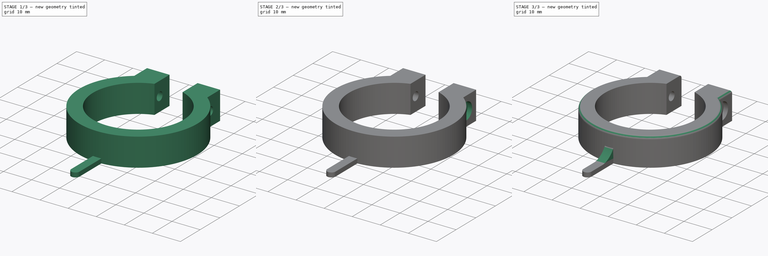
[diagram: build sequence overview — one tinted view per stage of 3, left to right]
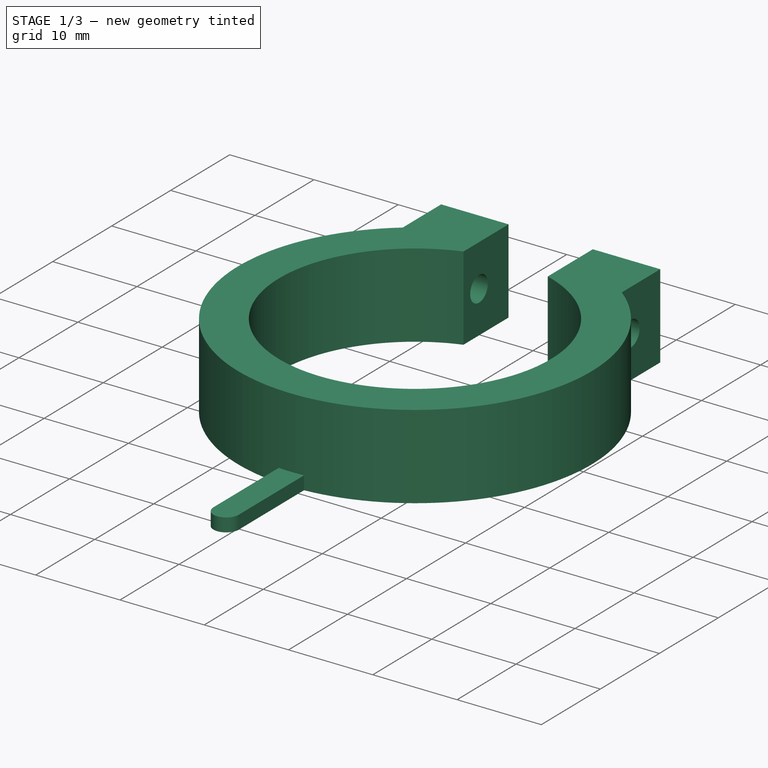
[diagram: stage 1 of 3 — iso view after this stage's code; geometry added in this stage tinted green]
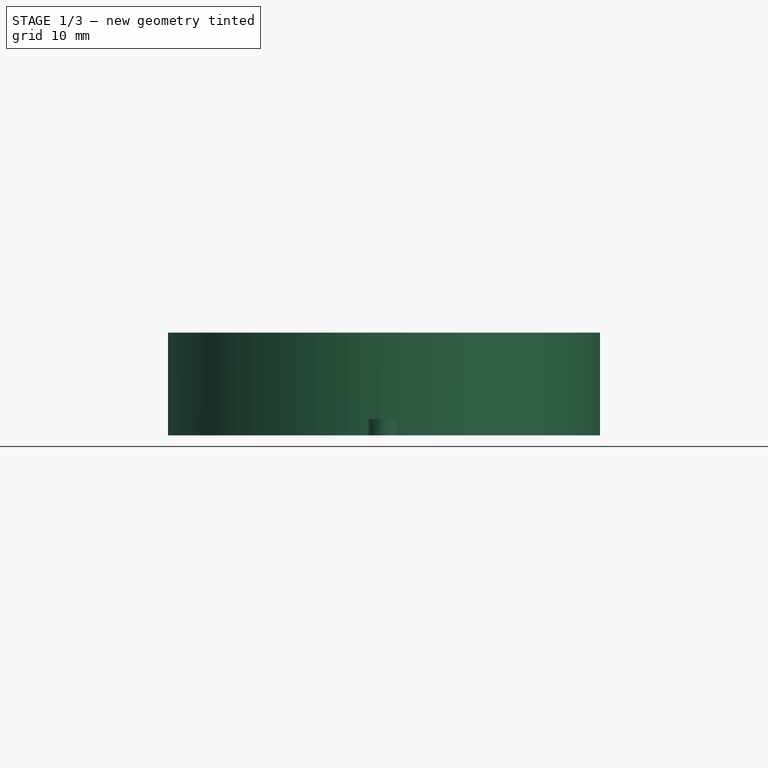
[diagram: stage 1 of 3 — front view after this stage's code; geometry added in this stage tinted green]
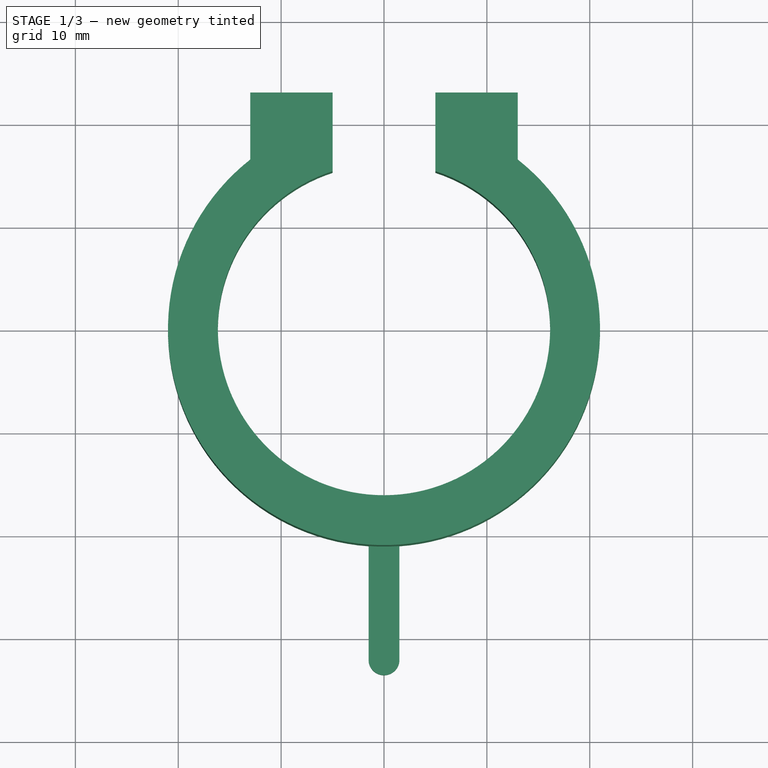
[diagram: stage 1 of 3 — top view after this stage's code; geometry added in this stage tinted green]
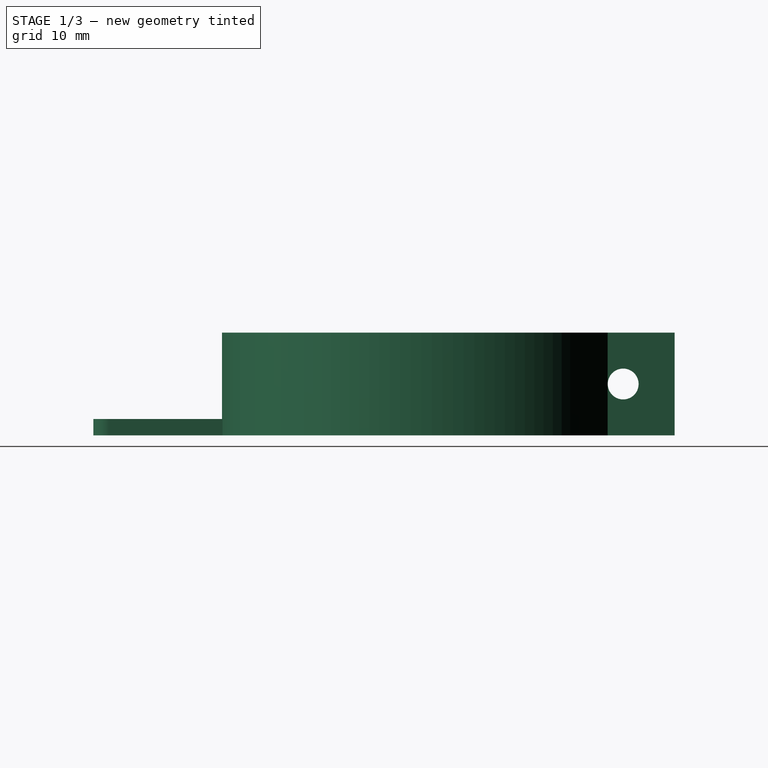
[diagram: stage 1 of 3 — right view after this stage's code; geometry added in this stage tinted green]
FCSTD DOCUMENT  (FreeCAD 0.16R4928 (Git))
Label: homing_ring
License: All rights reserved
LicenseURL: http://en.wikipedia.org/wiki/All_rights_reserved
objects: Sketcher::SketchObject×6, PartDesign::Pocket×4, PartDesign::Pad×2, PartDesign::Fillet×1, Part::MultiFuse×1
note: 20 computed .brp shape members not serialized (recipe doc carries the construction recipe); baked Part::Feature solids carry a one-line shape summary decoded from their .brp

FEATURE [Sketcher::SketchObject] Sketch
  sketch-geometry (12):
    g0: ArcOfCircle CenterX=0 CenterY=0 CenterZ=0 NormalX=0 NormalY=0 NormalZ=1 Radius=16.15 StartAngle=1.88557 EndAngle=7.53921
    g1: ArcOfCircle CenterX=0 CenterY=0 CenterZ=0 NormalX=0 NormalY=0 NormalZ=1 Radius=21 StartAngle=4.78388 EndAngle=7.18645
    g2: LineSegment StartX=-1.5 StartY=-20.9464 StartZ=0 EndX=-1.5 EndY=-32 EndZ=0
    g3: LineSegment StartX=1.5 StartY=-20.9464 StartZ=0 EndX=1.5 EndY=-32 EndZ=0
    g4: LineSegment StartX=-5 StartY=23 StartZ=0 EndX=-5 EndY=15.3565 EndZ=0
    g5: LineSegment StartX=5 StartY=23 StartZ=0 EndX=5 EndY=15.3565 EndZ=0
    g6: ArcOfCircle CenterX=0 CenterY=0 CenterZ=0 NormalX=0 NormalY=0 NormalZ=1 Radius=21 StartAngle=2.23833 EndAngle=4.6409
    g7: LineSegment StartX=-13 StartY=16.4924 StartZ=0 EndX=-13 EndY=23 EndZ=0
    g8: LineSegment StartX=13 StartY=16.4924 StartZ=0 EndX=13 EndY=23 EndZ=0
    g9: LineSegment StartX=5 StartY=23 StartZ=0 EndX=13 EndY=23 EndZ=0
    g10: LineSegment StartX=-13 StartY=23 StartZ=0 EndX=-5 EndY=23 EndZ=0
    g11: ArcOfCircle CenterX=0 CenterY=-32 CenterZ=0 NormalX=0 NormalY=0 NormalZ=1 Radius=1.5 StartAngle=3.1416 EndAngle=6.28318
  constraints (37):
    c: Coincident(g0,g-1)
    c: Radius(g0) = 16.15
    c: Coincident(g1,g-1)
    c: Radius(g1) = 21
    c: Vertical(g2)
    c: Vertical(g3)
    c: Coincident(g1,g3)
    c: Coincident(g6,g2)
    c: DistanceX(g-1,g1) = 1.5
    c: DistanceX(g-1,g6) = -1.5
    c: Equal(g3,g2)
    c: Vertical(g4)
    c: Vertical(g5)
    c: DistanceX(g-1,g5) = 5
    c: DistanceX(g-1,g4) = -5
    c: Equal(g1,g6)
    c: Coincident(g1,g6)
    c: Coincident(g0,g4)
    c: Coincident(g0,g5)
    c: DistanceY(g-1,g4) = 23
    c: Vertical(g7)
    c: Vertical(g8)
    c: Coincident(g1,g8)
    c: Coincident(g7,g6)
    c: Coincident(g9,g5)
    c: Coincident(g9,g8)
    c: Horizontal(g9)
    c: Coincident(g10,g7)
    c: Coincident(g10,g4)
    c: Horizontal(g10)
    c: Coincident(g11,g2)
    c: Coincident(g11,g3)
    c: Radius(g11) = 1.5
    c: DistanceX(g-1,g6) = -13
    c: DistanceX(g-1,g1) = 13
    c: DistanceY(g-1,g11) = -32
    c: Symmetric(g4,g5,g-2)
FEATURE [PartDesign::Pad] Pad  label="Initial Pad"
  Length = 10
  Length2 = 100
  Sketch = -> Sketch
  Type = 0
FEATURE [Sketcher::SketchObject] Sketch001
  ExternalGeometry = -> [Pad]
  Placement = pos=(0,0,10) rot=(0,0,1;0rad)
  Support = -> Pad [Face14]
  sketch-geometry (4):
    g0: ArcOfCircle CenterX=0 CenterY=0 CenterZ=0 NormalX=0 NormalY=0 NormalZ=1 Radius=21 StartAngle=4.6409 EndAngle=4.78388
    g1: LineSegment StartX=-1.5 StartY=-20.9464 StartZ=0 EndX=-1.5 EndY=-32 EndZ=0
    g2: LineSegment StartX=1.5 StartY=-20.9464 StartZ=0 EndX=1.5 EndY=-32 EndZ=0
    g3: ArcOfCircle CenterX=0 CenterY=-32 CenterZ=0 NormalX=0 NormalY=0 NormalZ=1 Radius=1.5 StartAngle=3.1416 EndAngle=6.28318
  constraints (13):
    c: Coincident(g0,g-1)
    c: Coincident(g0,g-3)
    c: Coincident(g0,g-4)
    c: Vertical(g1)
    c: Coincident(g1,g0)
    c: Coincident(g1,g-5)
    c: Vertical(g2)
    c: Coincident(g2,g0)
    c: Coincident(g2,g-5)
    c: Coincident(g3,g-5)
    c: Coincident(g3,g1)
    c: PointOnObject(g3,g-5)
    c: Coincident(g3,g2)
FEATURE [PartDesign::Pocket] Pocket  label="Pin Cut"
  Length = 8.4
  Sketch = -> Sketch001
  Type = 0
FEATURE [Sketcher::SketchObject] Sketch002
  Placement = pos=(13,0,0) rot=(0.57735,0.57735,0.57735;2.0944rad)
  Support = -> Pocket [Face12]
  sketch-geometry (1):
    g0: Circle CenterX=18 CenterY=5 CenterZ=0 NormalX=0 NormalY=0 NormalZ=1 Radius=1.5
  constraints (3):
    c: Radius(g0) = 1.5
    c: DistanceX(g-1,g0) = 18
    c: DistanceY(g-1,g0) = 5
FEATURE [PartDesign::Pocket] Pocket001  label="M3 Hole"
  Length = 5
  Midplane = true
  Sketch = -> Sketch002
  Type = 1
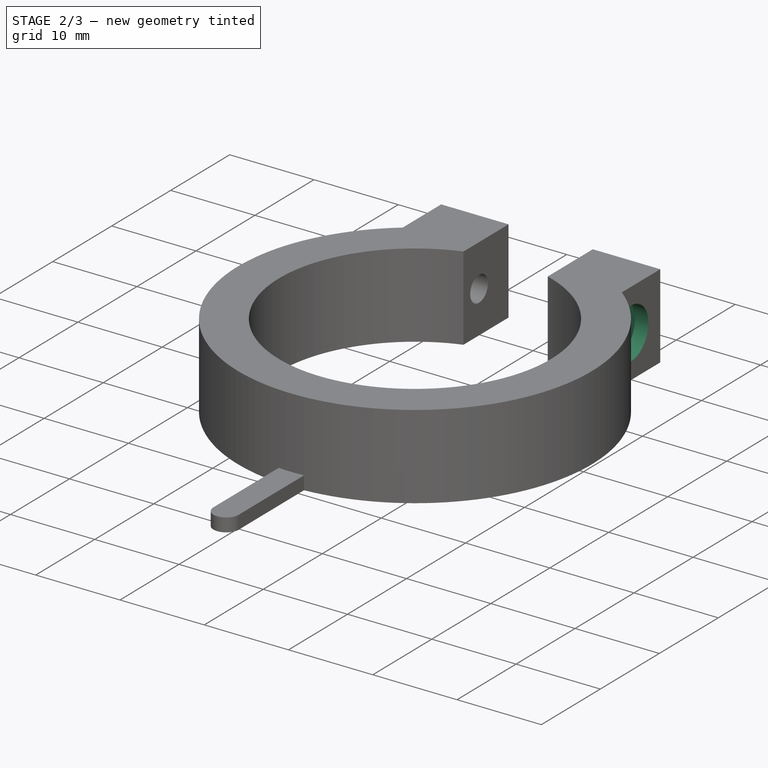
[diagram: stage 2 of 3 — iso view after this stage's code; geometry added in this stage tinted green]
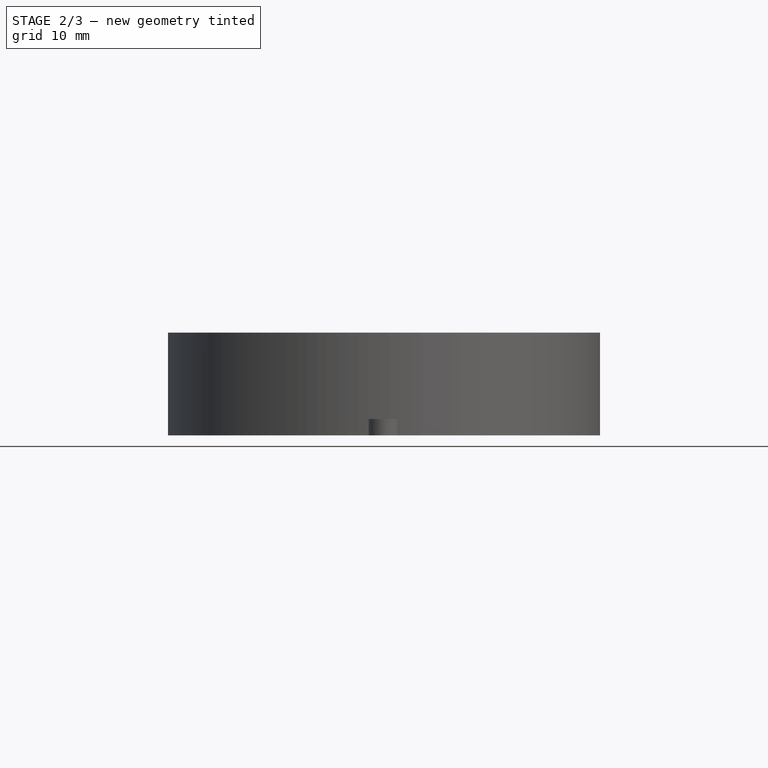
[diagram: stage 2 of 3 — front view after this stage's code; geometry added in this stage tinted green]
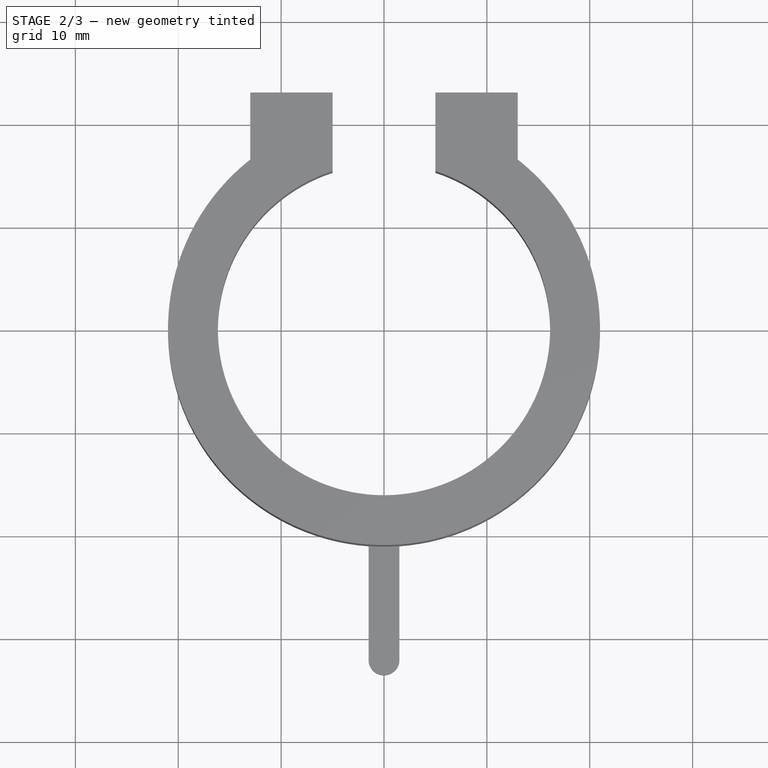
[diagram: stage 2 of 3 — top view after this stage's code; geometry added in this stage tinted green]
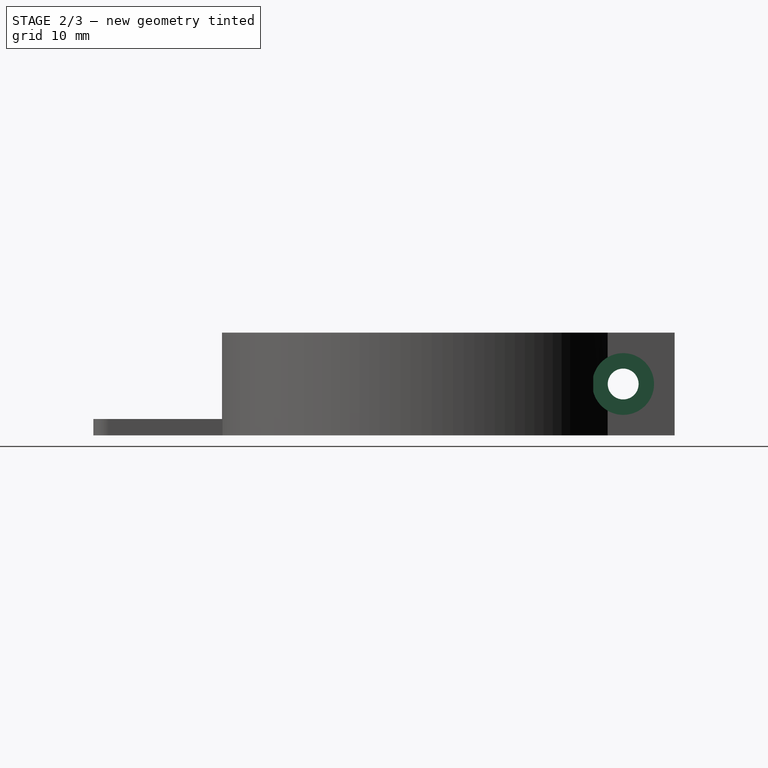
[diagram: stage 2 of 3 — right view after this stage's code; geometry added in this stage tinted green]
FEATURE [PartDesign::Pocket] Pocket004  label="M3 Countersink"
  Length = 3.2
  Midplane = true
  Sketch = -> Sketch003
  Type = 0
FEATURE [Sketcher::SketchObject] Sketch004
  ExternalGeometry = -> [Pocket004]
  Placement = pos=(-13,0,0) rot=(0.57735,-0.57735,-0.57735;2.0944rad)
  Support = -> Pocket004 [Face1]
  sketch-geometry (7):
    g0: LineSegment StartX=-18 StartY=8.3 StartZ=0 EndX=-20.8579 EndY=6.65 EndZ=0
    g1: LineSegment StartX=-20.8579 StartY=6.65 StartZ=0 EndX=-20.8579 EndY=3.35 EndZ=0
    g2: LineSegment StartX=-20.8579 StartY=3.35 StartZ=0 EndX=-18 EndY=1.7 EndZ=0
    g3: LineSegment StartX=-18 StartY=1.7 StartZ=0 EndX=-15.1421 EndY=3.35 EndZ=0
    g4: LineSegment StartX=-15.1421 StartY=3.35 StartZ=0 EndX=-15.1421 EndY=6.65 EndZ=0
    g5: LineSegment StartX=-15.1421 StartY=6.65 StartZ=0 EndX=-18 EndY=8.3 EndZ=0
    g6: Circle [constr] CenterX=-18 CenterY=5 CenterZ=0 NormalX=0 NormalY=0 NormalZ=1 Radius=3.3
  constraints (16):
    c: Coincident(g0,g1)
    c: Coincident(g1,g2)
    c: Coincident(g2,g3)
    c: Coincident(g3,g4)
    c: Coincident(g4,g5)
    c: Coincident(g5,g0)
    c: Equal(g0, g1-g5) x5
    c: PointOnObject(g0,g6)
    c: PointOnObject(g1,g6)
    c: PointOnObject(g2,g6)
    c: PointOnObject(g3,g6)
    c: PointOnObject(g4,g6)
    c: PointOnObject(g5,g6)
    c: Radius(g6) = 3.3
    c: Coincident(g-3,g6)
    c: Vertical(g1)
FEATURE [PartDesign::Pocket] Pocket005  label="M3 Nut"
  Length = 4
  Midplane = true
  Sketch = -> Sketch004
  Type = 0
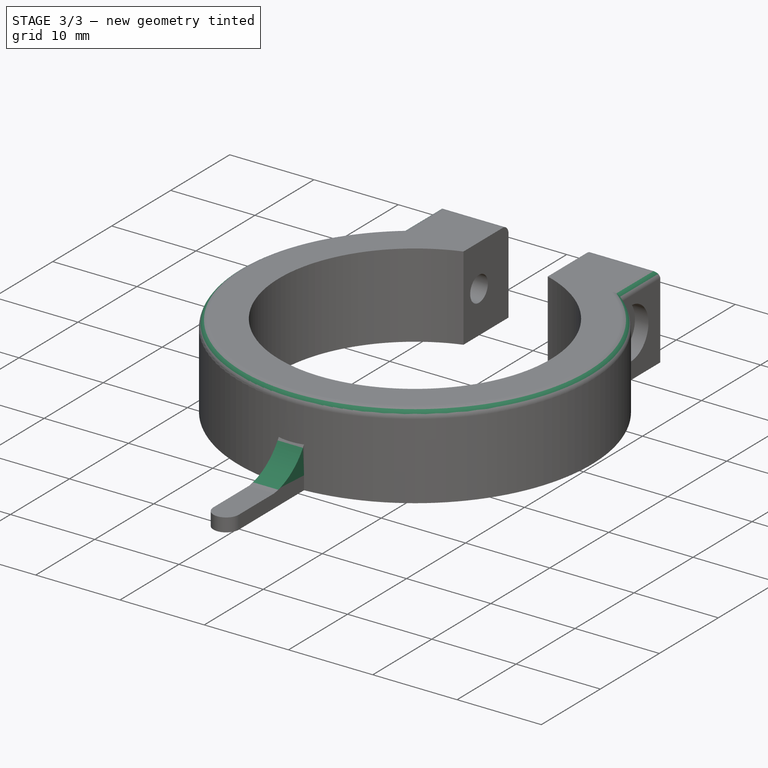
[diagram: stage 3 of 3 — iso view after this stage's code; geometry added in this stage tinted green]
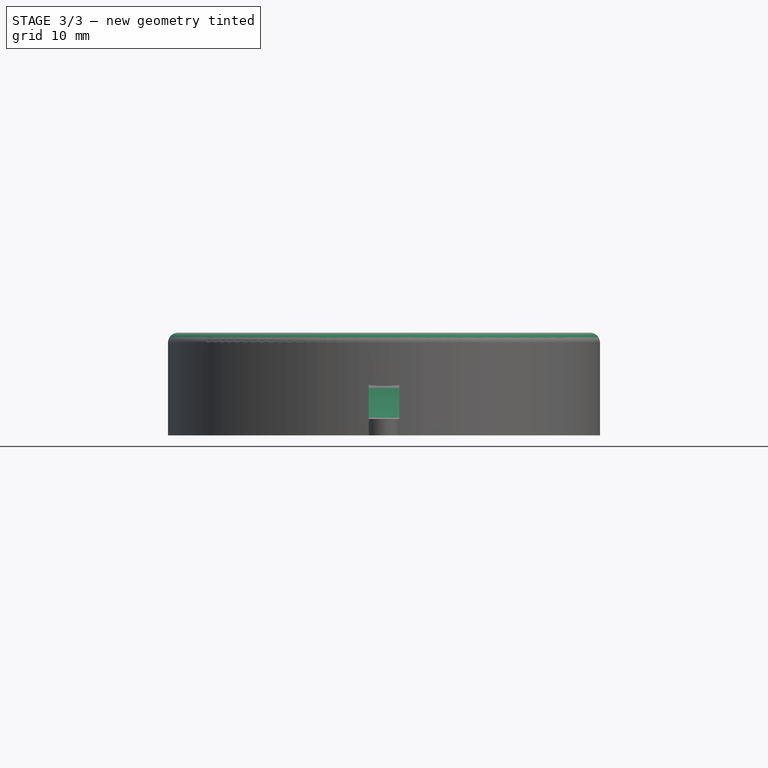
[diagram: stage 3 of 3 — front view after this stage's code; geometry added in this stage tinted green]
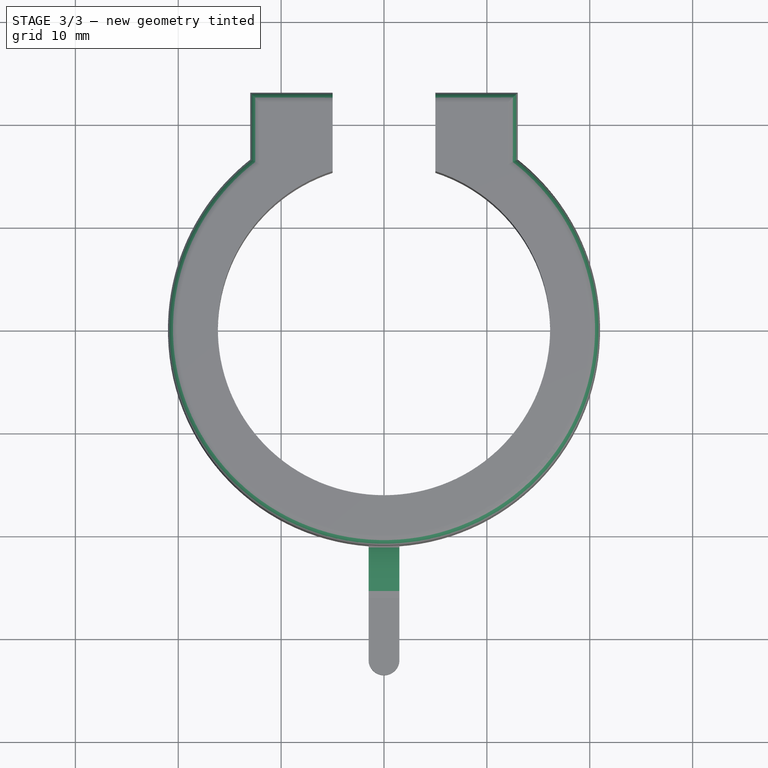
[diagram: stage 3 of 3 — top view after this stage's code; geometry added in this stage tinted green]
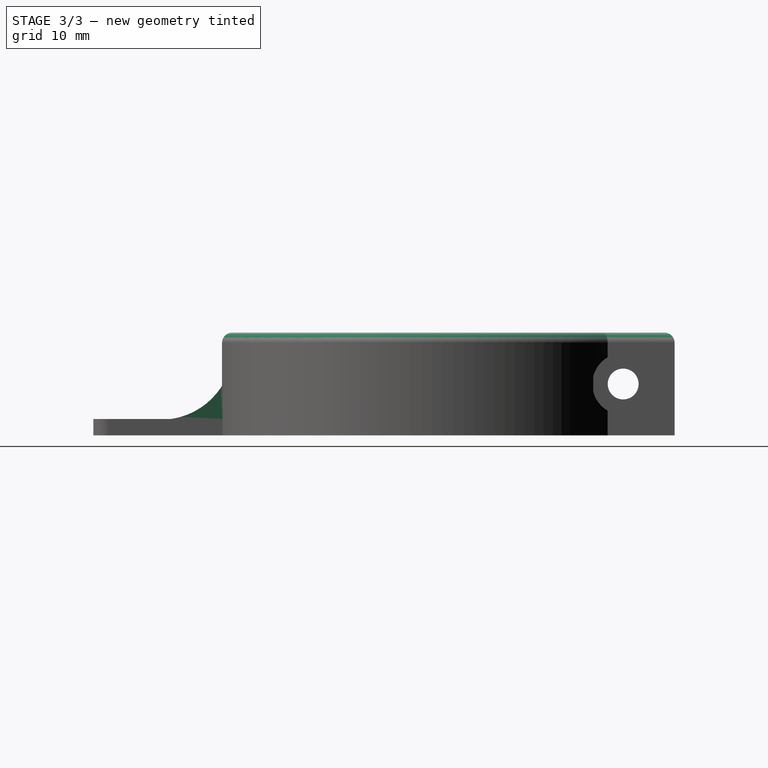
[diagram: stage 3 of 3 — right view after this stage's code; geometry added in this stage tinted green]
FEATURE [Sketcher::SketchObject] Sketch003
  ExternalGeometry = -> [Pocket001]
  Placement = pos=(13,0,0) rot=(0.57735,0.57735,0.57735;2.0944rad)
  Support = -> Pocket001 [Face13]
  sketch-geometry (1):
    g0: Circle CenterX=18 CenterY=5 CenterZ=0 NormalX=0 NormalY=0 NormalZ=1 Radius=3
  constraints (2):
    c: Radius(g0) = 3
    c: Coincident(g0,g-3)
FEATURE [Sketcher::SketchObject] Sketch005
  Placement = pos=(0,0,0) rot=(0.57735,0.57735,0.57735;2.0944rad)
  sketch-geometry (3):
    g0: LineSegment StartX=-26 StartY=1.6 StartZ=0 EndX=-20 EndY=1.6 EndZ=0
    g1: LineSegment StartX=-20 StartY=1.6 StartZ=0 EndX=-20 EndY=9.5 EndZ=0
    g2: ArcOfCircle CenterX=-26.9335 CenterY=8.53748 CenterZ=0 NormalX=0 NormalY=0 NormalZ=1 Radius=7 StartAngle=4.84615 EndAngle=6.42113
  constraints (10):
    c: Horizontal(g0)
    c: Coincident(g1,g0)
    c: Vertical(g1)
    c: DistanceX(g-1,g0) = -20
    c: DistanceY(g-1,g0) = 1.6
    c: DistanceY(g0,g1) = 7.9
    c: DistanceX(g0,g0) = -6
    c: Coincident(g2,g1)
    c: Coincident(g2,g0)
    c: Radius(g2) = 7
FEATURE [PartDesign::Pad] Pad001  label="Pin Fillet"
  Length = 3
  Length2 = 100
  Midplane = true
  Placement = pos=(0,0,0) rot=(0.57735,0.57735,0.57735;2.0944rad)
  Sketch = -> Sketch005
  Type = 0
FEATURE [PartDesign::Fillet] Fillet
  Base = -> Pocket005 [Edge31,Edge30,Edge29,Edge28,Edge27,Edge23,Edge3]
  Radius = 1
FEATURE [Part::MultiFuse] Fusion
  Shapes = -> [Pad001,Fillet]
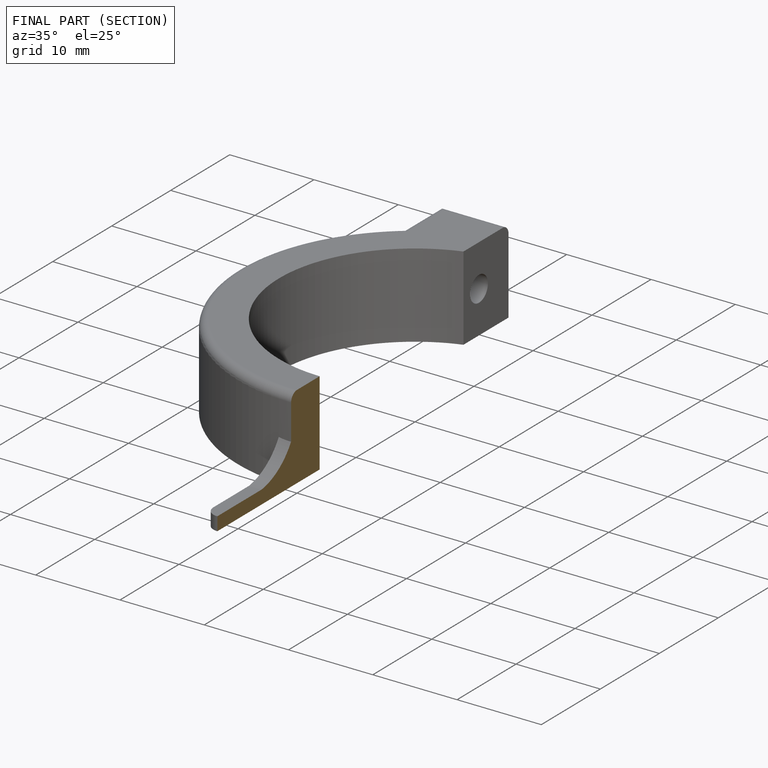
[diagram: finished part — half-section view (interior)]
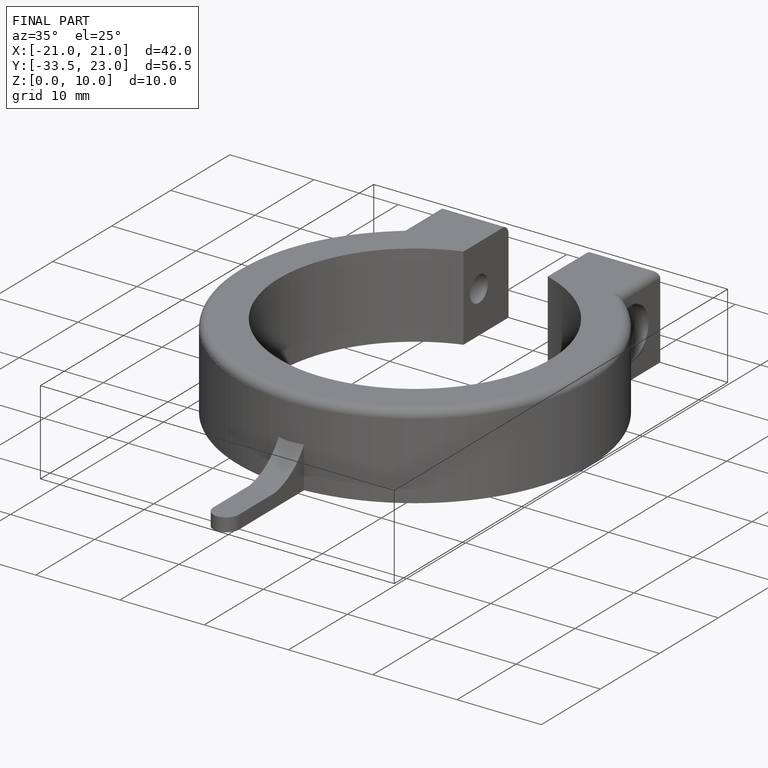
[diagram: finished part — iso view with bounding-box wireframe]
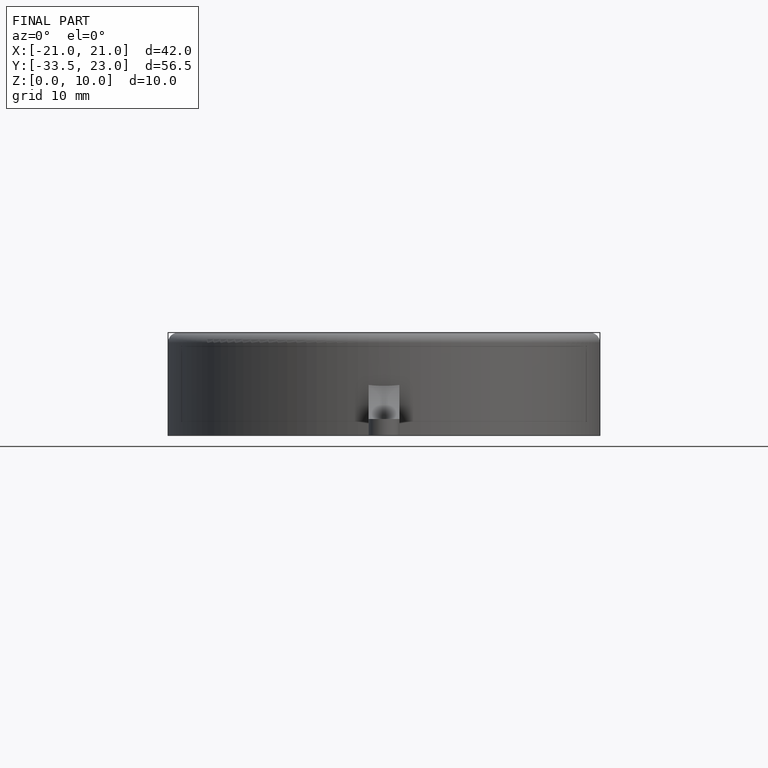
[diagram: finished part — front view with bounding-box wireframe]
